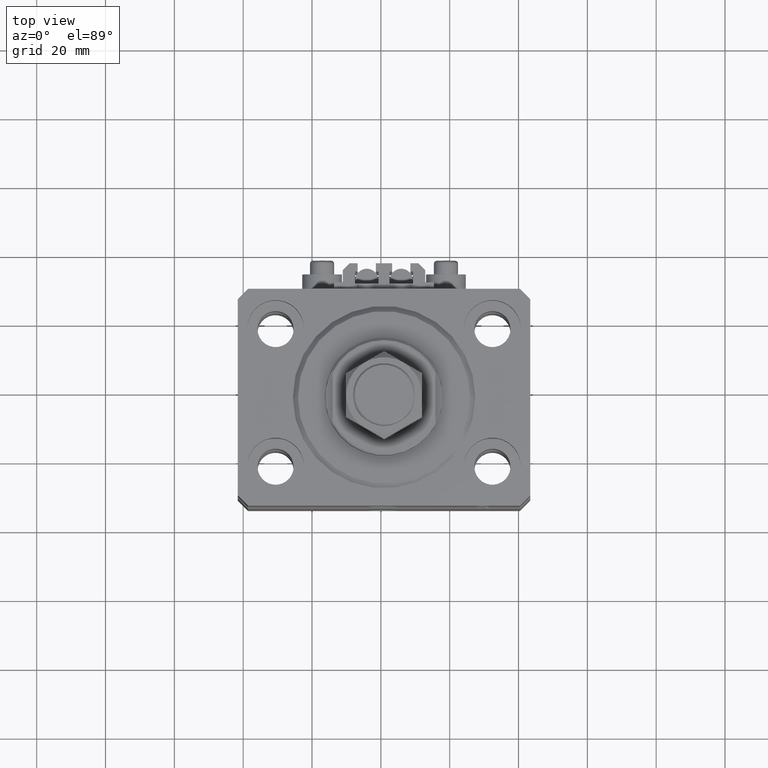
[diagram: clean part render]
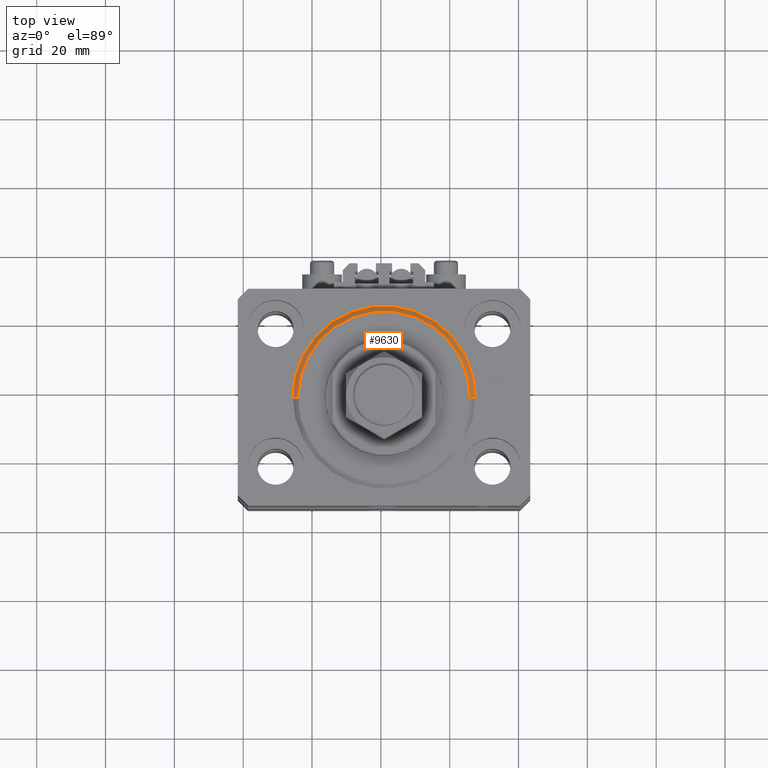
[diagram: same view with one face highlighted and labeled with its STEP entity id]
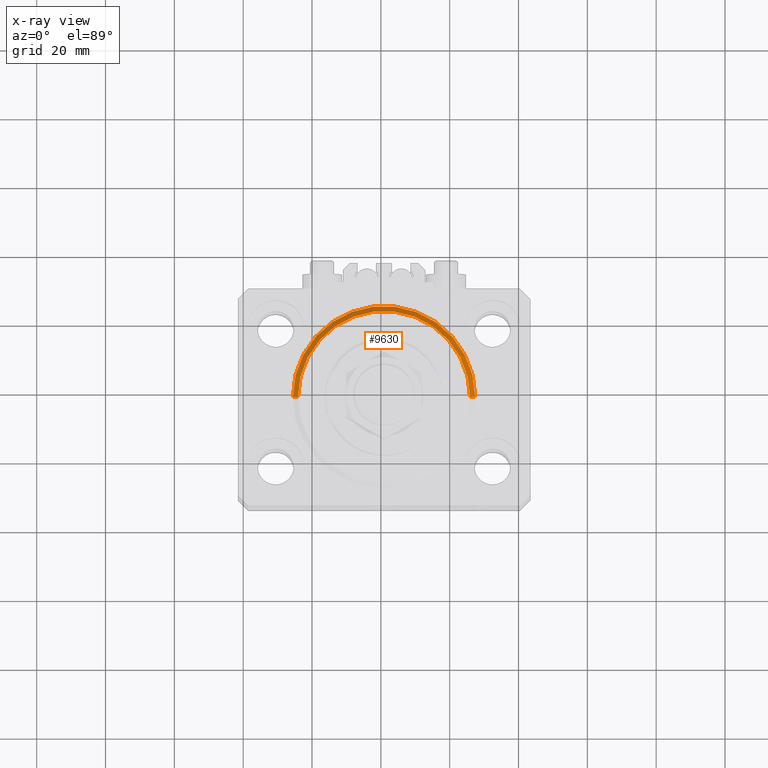
[diagram: x-ray of the same camera — body ghosted, the highlighted face saturated]
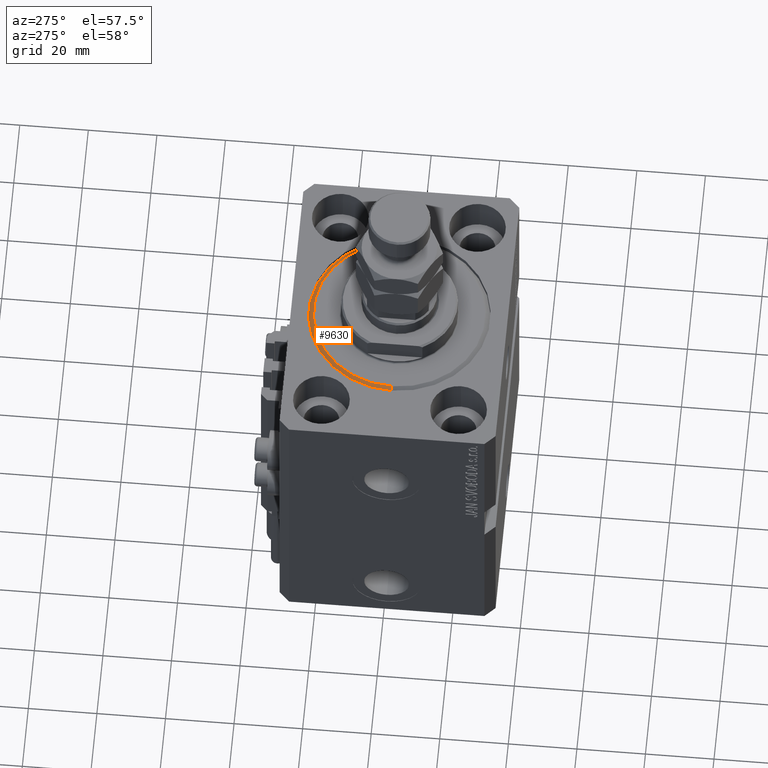
[diagram: same view with one face highlighted and labeled with its STEP entity id]
A machine part, top view. The second image highlights one B-rep face of the part: STEP entity #9630.
The next image is the same camera in x-ray: the body ghosted, the highlighted face saturated — about 0% of this face is hidden behind the body in this view.
A second angle (auxiliary view) of the same face is appended — the face is thin or edge-on in the first view.
In plain terms, the highlighted conical surface has half-angle 45 deg.
Its self-contained STEP definition (entity closure, byte-faithful):
#306 = CARTESIAN_POINT ( 'NONE',  ( 26.50000000000000355, 3.245314017740486554E-15, 1.500000000000018652 ) ) ;
#380 = CARTESIAN_POINT ( 'NONE',  ( 0.000000000000000000, 0.000000000000000000, 1.500000000000018652 ) ) ;
#1066 = CARTESIAN_POINT ( 'NONE',  ( 26.50000000000000355, 0.000000000000000000, 1.500000000000018652 ) ) ;
#2693 = CONICAL_SURFACE ( 'NONE', #36998, 26.50000000000000355, 0.7853981633974495002 ) ;
#3184 = CIRCLE ( 'NONE', #35083, 24.99999999999998224 ) ;
#3769 = CARTESIAN_POINT ( 'NONE',  ( -26.50000000000000355, 0.000000000000000000, 1.500000000000018652 ) ) ;
#4652 = LINE ( 'NONE', #1066, #32714 ) ;
#5983 = ORIENTED_EDGE ( 'NONE', *, *, #20766, .F. ) ;
#8463 = VERTEX_POINT ( 'NONE', #306 ) ;
#9110 = CARTESIAN_POINT ( 'NONE',  ( 0.000000000000000000, 0.000000000000000000, 0.000000000000000000 ) ) ;
#9630 = ADVANCED_FACE ( 'NONE', ( #10637 ), #2693, .T. ) ;
#10263 = DIRECTION ( 'NONE',  ( -0.7071067811865483499, 8.659560562354942719E-17, 0.7071067811865466846 ) ) ;
#10637 = FACE_OUTER_BOUND ( 'NONE', #42077, .T. ) ;
#15626 = ORIENTED_EDGE ( 'NONE', *, *, #29126, .F. ) ;
#16228 = DIRECTION ( 'NONE',  ( 1.000000000000000000, 0.000000000000000000, 0.000000000000000000 ) ) ;
#16663 = DIRECTION ( 'NONE',  ( 0.7071067811865483499, 0.000000000000000000, 0.7071067811865466846 ) ) ;
#20312 = EDGE_CURVE ( 'NONE', #30120, #23039, #41748, .T. ) ;
#20766 = EDGE_CURVE ( 'NONE', #8463, #23039, #21750, .T. ) ;
#21328 = ORIENTED_EDGE ( 'NONE', *, *, #46618, .F. ) ;
#21750 = CIRCLE ( 'NONE', #50334, 26.50000000000000355 ) ;
#22239 = DIRECTION ( 'NONE',  ( 1.000000000000000000, 0.000000000000000000, 0.000000000000000000 ) ) ;
#23039 = VERTEX_POINT ( 'NONE', #3769 ) ;
#24174 = DIRECTION ( 'NONE',  ( -0.000000000000000000, -0.000000000000000000, 1.000000000000000000 ) ) ;
#24373 = CARTESIAN_POINT ( 'NONE',  ( -24.99999999999998224, 3.153465507804433615E-15, 0.000000000000000000 ) ) ;
#24732 = DIRECTION ( 'NONE',  ( -0.000000000000000000, -0.000000000000000000, -1.000000000000000000 ) ) ;
#29126 = EDGE_CURVE ( 'NONE', #43307, #8463, #4652, .T. ) ;
#29456 = CARTESIAN_POINT ( 'NONE',  ( -26.50000000000000355, 3.245314017740486554E-15, 1.500000000000018652 ) ) ;
#30120 = VERTEX_POINT ( 'NONE', #24373 ) ;
#31976 = CARTESIAN_POINT ( 'NONE',  ( 24.99999999999998224, 0.000000000000000000, 0.000000000000000000 ) ) ;
#32714 = VECTOR ( 'NONE', #16663, 1000.000000000000000 ) ;
#35083 = AXIS2_PLACEMENT_3D ( 'NONE', #9110, #24732, #40592 ) ;
#36860 = ORIENTED_EDGE ( 'NONE', *, *, #20312, .T. ) ;
#36998 = AXIS2_PLACEMENT_3D ( 'NONE', #380, #24174, #16228 ) ;
#37088 = DIRECTION ( 'NONE',  ( -0.000000000000000000, -0.000000000000000000, 1.000000000000000000 ) ) ;
#39760 = VECTOR ( 'NONE', #10263, 1000.000000000000000 ) ;
#40592 = DIRECTION ( 'NONE',  ( 1.000000000000000000, 0.000000000000000000, 0.000000000000000000 ) ) ;
#41748 = LINE ( 'NONE', #29456, #39760 ) ;
#42077 = EDGE_LOOP ( 'NONE', ( #21328, #36860, #5983, #15626 ) ) ;
#43307 = VERTEX_POINT ( 'NONE', #31976 ) ;
#46618 = EDGE_CURVE ( 'NONE', #30120, #43307, #3184, .T. ) ;
#49595 = CARTESIAN_POINT ( 'NONE',  ( 0.000000000000000000, 0.000000000000000000, 1.500000000000018652 ) ) ;
#50334 = AXIS2_PLACEMENT_3D ( 'NONE', #49595, #37088, #22239 ) ;